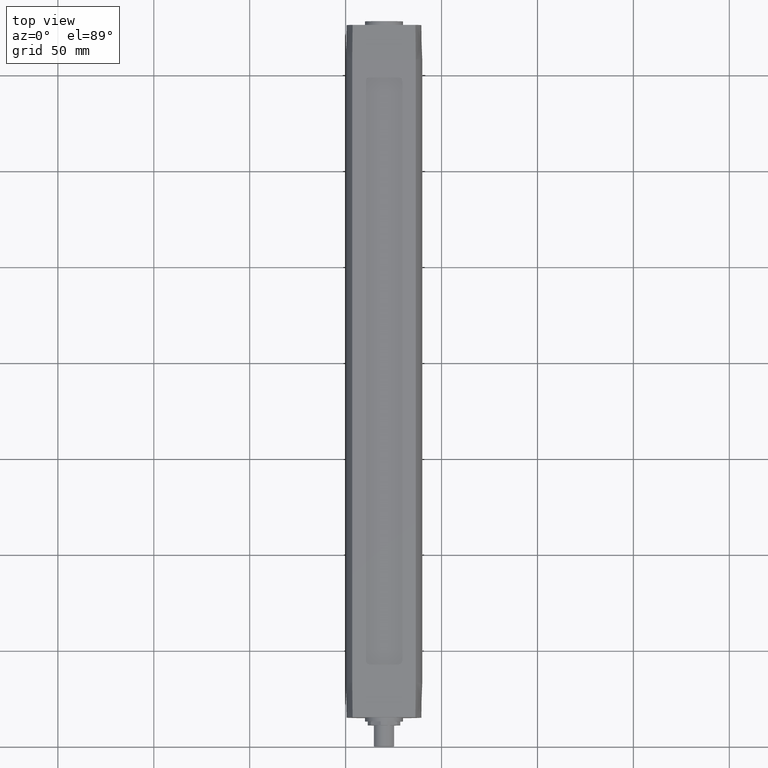
[diagram: clean part render]
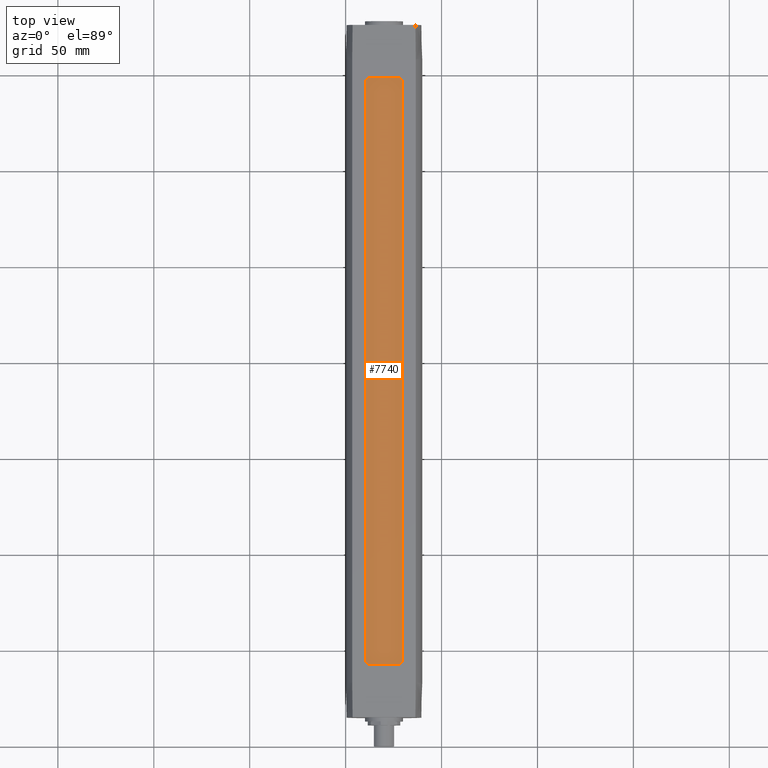
[diagram: same view with one face highlighted and labeled with its STEP entity id]
A machine part, top view. The second image highlights one B-rep face of the part: STEP entity #7740.
In plain terms, the highlighted planar face has unit normal (0, 0, 1).
Its self-contained STEP definition (entity closure, byte-faithful):
#6990=CARTESIAN_POINT('',(7.49999999999999,11.,-151.));
#7000=DIRECTION('',(0.,1.,0.));
#7010=DIRECTION('',(0.,0.,1.));
#7020=AXIS2_PLACEMENT_3D('',#6990,#7000,#7010);
#7030=PLANE('',#7020);
#7040=CARTESIAN_POINT('',(-7.49999999999999,11.,-151.));
#7050=DIRECTION('',(0.,1.,0.));
#7060=DIRECTION('',(0.,0.,-1.));
#7070=AXIS2_PLACEMENT_3D('',#7040,#7050,#7060);
#7080=CIRCLE('',#7070,2.);
#7090=CARTESIAN_POINT('',(-7.5,11.,-153.));
#7100=VERTEX_POINT('',#7090);
#7110=CARTESIAN_POINT('',(-9.49999999999999,11.,-151.));
#7120=VERTEX_POINT('',#7110);
#7130=EDGE_CURVE('',#7100,#7120,#7080,.T.);
#7140=ORIENTED_EDGE('',*,*,#7130,.T.);
#7150=CARTESIAN_POINT('',(7.49999999999999,11.,-153.));
#7160=DIRECTION('',(-1.,0.,0.));
#7170=VECTOR('',#7160,1.);
#7180=LINE('',#7150,#7170);
#7190=CARTESIAN_POINT('',(7.49999999999999,11.,-153.));
#7200=VERTEX_POINT('',#7190);
#7210=EDGE_CURVE('',#7200,#7100,#7180,.T.);
#7220=ORIENTED_EDGE('',*,*,#7210,.T.);
#7230=CARTESIAN_POINT('',(7.49999999999999,11.,-151.));
#7240=DIRECTION('',(0.,1.,0.));
#7250=DIRECTION('',(1.,0.,5.6843418860808E-14));
#7260=AXIS2_PLACEMENT_3D('',#7230,#7240,#7250);
#7270=CIRCLE('',#7260,2.);
#7280=CARTESIAN_POINT('',(9.49999999999999,11.,-151.));
#7290=VERTEX_POINT('',#7280);
#7300=EDGE_CURVE('',#7290,#7200,#7270,.T.);
#7310=ORIENTED_EDGE('',*,*,#7300,.T.);
#7320=CARTESIAN_POINT('',(9.50000000000001,11.,151.));
#7330=DIRECTION('',(0.,0.,-1.));
#7340=VECTOR('',#7330,1.);
#7350=LINE('',#7320,#7340);
#7360=CARTESIAN_POINT('',(9.49999999999999,11.,151.));
#7370=VERTEX_POINT('',#7360);
#7380=EDGE_CURVE('',#7370,#7290,#7350,.T.);
#7390=ORIENTED_EDGE('',*,*,#7380,.T.);
#7400=CARTESIAN_POINT('',(7.49999999999999,11.,151.));
#7410=DIRECTION('',(0.,1.,0.));
#7420=DIRECTION('',(0.,0.,1.));
#7430=AXIS2_PLACEMENT_3D('',#7400,#7410,#7420);
#7440=CIRCLE('',#7430,2.);
#7450=CARTESIAN_POINT('',(7.49999999999999,11.,153.));
#7460=VERTEX_POINT('',#7450);
#7470=EDGE_CURVE('',#7460,#7370,#7440,.T.);
#7480=ORIENTED_EDGE('',*,*,#7470,.T.);
#7490=CARTESIAN_POINT('',(-7.49999999999999,11.,153.));
#7500=DIRECTION('',(1.,0.,0.));
#7510=VECTOR('',#7500,1.);
#7520=LINE('',#7490,#7510);
#7530=CARTESIAN_POINT('',(-7.5,11.,153.));
#7540=VERTEX_POINT('',#7530);
#7550=EDGE_CURVE('',#7540,#7460,#7520,.T.);
#7560=ORIENTED_EDGE('',*,*,#7550,.T.);
#7570=CARTESIAN_POINT('',(-7.49999999999999,11.,151.));
#7580=DIRECTION('',(0.,1.,0.));
#7590=DIRECTION('',(-1.,0.,0.));
#7600=AXIS2_PLACEMENT_3D('',#7570,#7580,#7590);
#7610=CIRCLE('',#7600,2.);
#7620=CARTESIAN_POINT('',(-9.49999999999999,11.,151.));
#7630=VERTEX_POINT('',#7620);
#7640=EDGE_CURVE('',#7630,#7540,#7610,.T.);
#7650=ORIENTED_EDGE('',*,*,#7640,.T.);
#7660=CARTESIAN_POINT('',(-9.49999999999999,11.,-151.));
#7670=DIRECTION('',(0.,0.,1.));
#7680=VECTOR('',#7670,1.);
#7690=LINE('',#7660,#7680);
#7700=EDGE_CURVE('',#7120,#7630,#7690,.T.);
#7710=ORIENTED_EDGE('',*,*,#7700,.T.);
#7720=EDGE_LOOP('',(#7710,#7650,#7560,#7480,#7390,#7310,#7220,#7140));
#7730=FACE_OUTER_BOUND('',#7720,.T.);
#7740=ADVANCED_FACE('',(#7730),#7030,.T.);